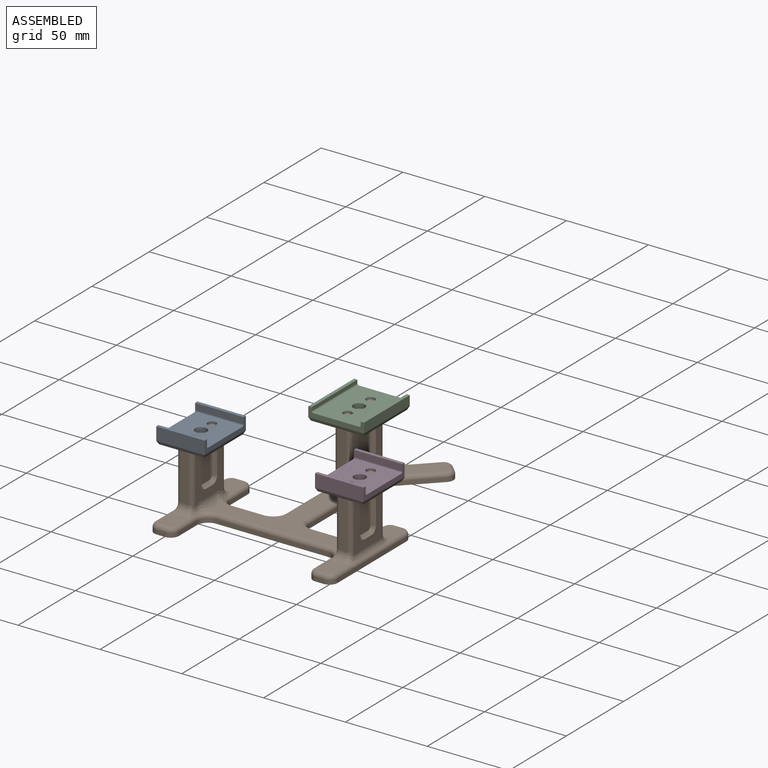
[diagram: assembled view]
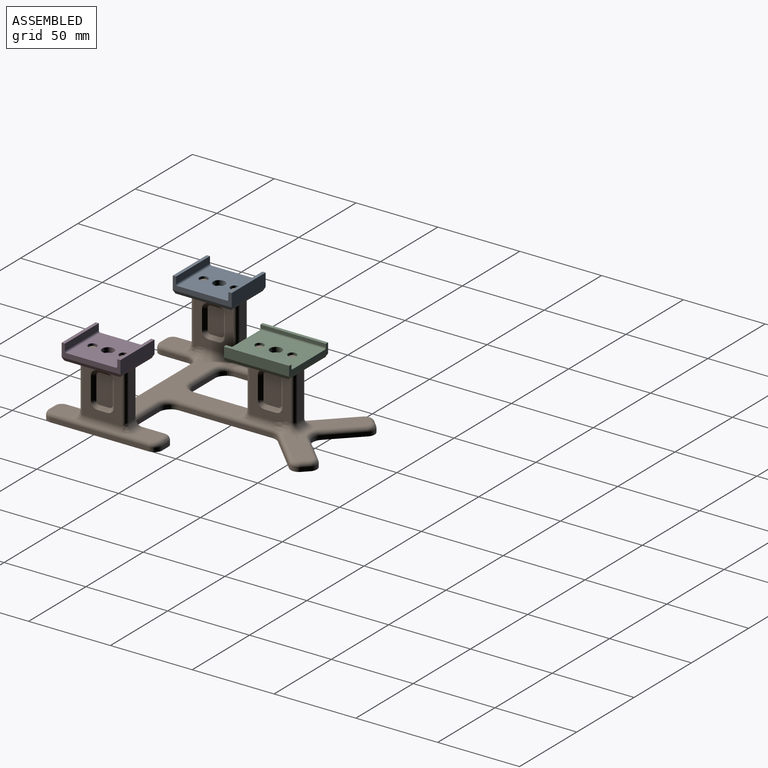
[diagram: assembled view, second angle]
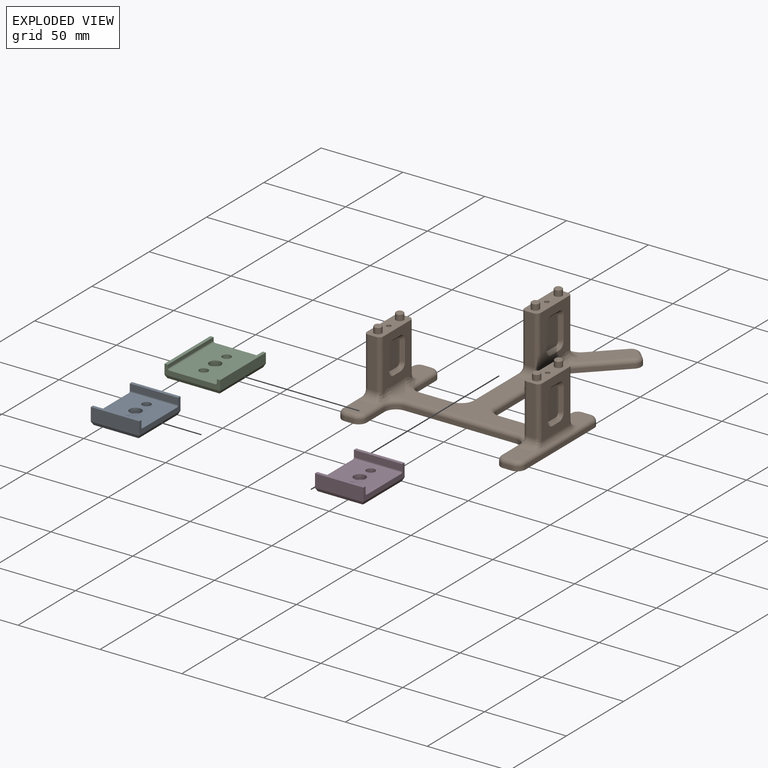
[diagram: exploded view]
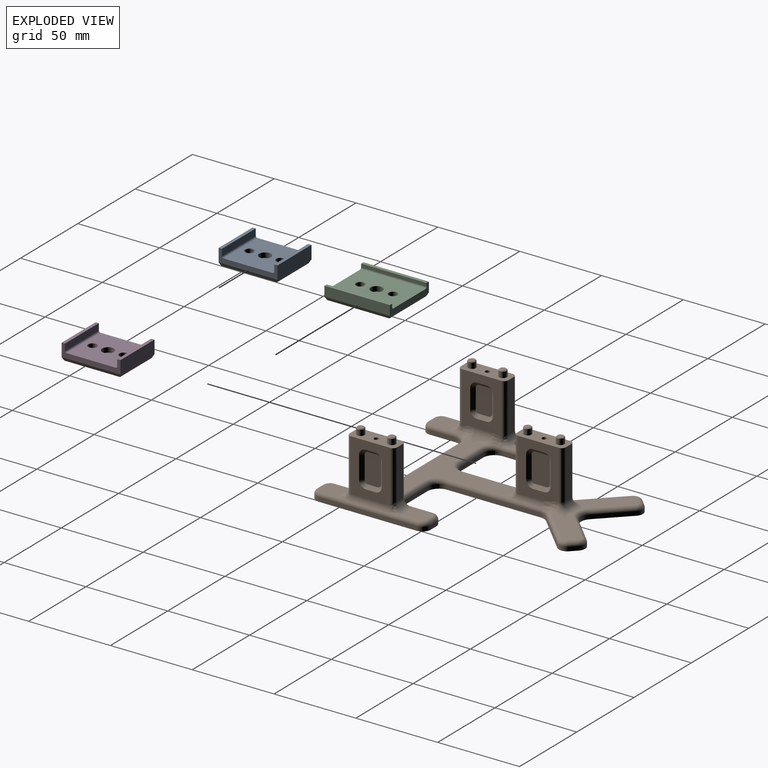
[diagram: exploded view, second angle]
ASSEMBLY  parts=4 mates=3
PART A: 23 faces, bbox 29.6x36x10 mm
  f0: plane 30x29.6mm, normal (0,0,1), area 803.2mm2, adj f3,f5,f6,f7,f9,f15,f16
  f1: cylinder r=1.75mm len=3.5mm, axis (0,0,-1), area 22mm2, adj f8,f10
  f2: plane 29.6x8mm, normal (0,1,0), area 236.8mm2, adj f3,f7,f12,f20
  f3: plane 36x8mm, normal (-1,0,0), area 128.4mm2, adj f0,f2,f4,f11,f12,f13,f14,f15
  f4: plane 29.6x8mm, normal (0,-1,0), area 236.8mm2, adj f3,f7,f14,f21
  f5: cylinder r=2.65mm len=5.3mm, axis (0,0,-1), area 66.6mm2, adj f0,f17
  f6: cylinder r=2.65mm len=5.3mm, axis (0,0,-1), area 66.6mm2, adj f0,f18
  f7: plane 36x8mm, normal (1,0,0), area 128.4mm2, adj f0,f2,f4,f11,f12,f13,f14,f15
  f8: plane 34x27.6mm, normal (0,0,-1), area 845.1mm2, adj f1,f17,f18,f19,f20,f21,f22
  f9: cylinder r=3.6mm len=7.2mm, axis (0,0,1), area 67.9mm2, adj f0,f10
  f10: plane 7.2x7.2mm, normal (0,0,1), area 31.1mm2, adj f1,f9
  f11: plane 29.6x4mm, normal (0,-1,0), area 118.4mm2, adj f3,f7,f12,f16
  f12: plane 29.6x2mm, normal (0,0,1), area 59.2mm2, adj f2,f3,f7,f11
  f13: plane 29.6x4mm, normal (0,1,0), area 118.4mm2, adj f3,f7,f14,f15
  f14: plane 29.6x2mm, normal (0,0,1), area 59.2mm2, adj f3,f4,f7,f13
  f15: cylinder r=1mm len=29.6mm, axis (-1,0,0), area 46.5mm2, adj f0,f3,f7,f13
  f16: cylinder r=1mm len=29.6mm, axis (1,0,0), area 46.5mm2, adj f0,f3,f7,f11
  f17: cone r=3.65mm half-angle=45deg, axis (0,0,-1), area 28mm2, adj f5,f8
  f18: cone r=3.65mm half-angle=45deg, axis (0,0,-1), area 28mm2, adj f6,f8
  f19: plane 36x2mm, normal (0.89,0,-0.45), area 78.3mm2, adj f7,f8,f20,f21
  f20: plane 29.6x2mm, normal (0,0.89,-0.45), area 64mm2, adj f2,f8,f19,f22
  f21: plane 29.6x2mm, normal (0,-0.89,-0.45), area 64mm2, adj f4,f8,f19,f22
  f22: plane 36x2mm, normal (-0.89,0,-0.45), area 78.3mm2, adj f3,f8,f20,f21
PART B: 242 faces, bbox 112.8x147.1x44 mm
  f0: plane 31.91x25mm, normal (1,0,0), area 472mm2, adj f106,f116,f117,f123,f125,f127,f129,f215
  f1: plane 31.91x25mm, normal (-1,0,0), area 472mm2, adj f106,f115,f118,f122,f124,f126,f128,f207
  f2: plane 31.39x24mm, normal (-1,0,0), area 459.7mm2, adj f103,f109,f110,f154,f156,f158,f231,f232
  f3: plane 31.91x24mm, normal (1,0,0), area 472.8mm2, adj f103,f107,f108,f161,f223,f224,f225,f226
  f4: plane 31.39x24mm, normal (1,0,0), area 459.7mm2, adj f100,f113,f114,f139,f141,f143,f191,f192
  f5: plane 31.91x24mm, normal (-1,0,0), area 472.8mm2, adj f100,f111,f112,f144,f199,f200,f201,f202
  f6: plane 31.21x28.28mm, normal (0,0,1), area 294.4mm2, adj f80,f82,f84,f86,f88,f90,f119,f120
  f7: plane 13.43x10mm, normal (0,0,1), area 128mm2, adj f56,f57,f58,f59,f60,f148,f149,f150
  f8: plane 13.43x10mm, normal (0,0,1), area 128mm2, adj f67,f69,f71,f73,f75,f164,f165,f166
  f9: plane 77x55.18mm, normal (0,0,1), area 1252.2mm2, adj f61,f63,f65,f70,f72,f74,f76,f85
  f10: plane 13.43x10mm, normal (0,0,1), area 128mm2, adj f60,f62,f64,f66,f68,f136,f138,f140
  f11: plane 31.21x28.28mm, normal (0,0,1), area 294.4mm2, adj f90,f92,f94,f95,f96,f97,f119,f121
  f12: plane 13.43x10mm, normal (0,0,1), area 128mm2, adj f75,f77,f79,f81,f83,f153,f155,f157
  f13: plane 60x2.5mm, normal (1,0,0), area 150mm2, adj f34,f44,f55,f75
  f14: plane 5x2.5mm, normal (0,1,0), area 12.5mm2, adj f34,f44,f45,f79
  f15: plane 15.5x2.5mm, normal (-1,0,0), area 38.8mm2, adj f34,f35,f45,f83
  f16: plane 19.5x2.5mm, normal (0,1,0), area 48.8mm2, adj f34,f35,f36,f87
  f17: plane 57.1x2.5mm, normal (1,0,0), area 142.8mm2, adj f34,f36,f37,f91
  f18: plane 22.7x22.7mm, normal (0.71,-0.71,0), area 80.3mm2, adj f34,f37,f46,f95
  f19: plane 3.54x3.54mm, normal (0.71,0.71,0), area 12.5mm2, adj f34,f46,f47,f96
  f20: plane 16.69x16.69mm, normal (-0.71,0.71,0), area 59mm2, adj f34,f38,f47,f92
  f21: plane 16.69x16.69mm, normal (0.71,0.71,0), area 59mm2, adj f34,f38,f48,f88
  f22: plane 3.54x3.54mm, normal (-0.71,0.71,0), area 12.5mm2, adj f34,f48,f49,f84
  f23: plane 22.7x22.7mm, normal (-0.71,-0.71,0), area 80.3mm2, adj f34,f39,f49,f80
  f24: plane 57.1x2.5mm, normal (-1,0,0), area 142.8mm2, adj f34,f39,f40,f76
  f25: plane 19.5x2.5mm, normal (0,1,0), area 48.8mm2, adj f34,f40,f41,f72
  f26: plane 15.5x2.5mm, normal (1,0,0), area 38.8mm2, adj f34,f41,f50,f68
  f27: plane 5x2.5mm, normal (0,1,0), area 12.5mm2, adj f34,f50,f51,f64
  f28: plane 60x2.5mm, normal (-1,0,0), area 150mm2, adj f34,f51,f52,f60
  f29: plane 5x2.5mm, normal (0,-1,0), area 12.5mm2, adj f34,f52,f53,f56
  f30: plane 15.5x2.5mm, normal (1,0,0), area 38.8mm2, adj f34,f42,f53,f59
  f31: plane 68x2.5mm, normal (0,-1,0), area 170mm2, adj f34,f42,f43,f63
  f32: plane 15.5x2.5mm, normal (-1,0,0), area 38.8mm2, adj f34,f43,f54,f67
  f33: plane 5x2.5mm, normal (0,-1,0), area 12.5mm2, adj f34,f54,f55,f71
  f34: plane 146.32x112mm, normal (0,0,-1), area 5564.8mm2, adj f13,f14,f15,f16,f17,f18,f19,f20
  f35: cylinder r=7mm len=7mm, axis (0,0,1), area 27.5mm2, adj f15,f16,f34,f85
  f36: cylinder r=7mm len=7mm, axis (0,0,1), area 27.5mm2, adj f16,f17,f34,f89
  f37: cylinder r=7mm len=4.95mm, axis (0,0,1), area 13.7mm2, adj f17,f18,f34,f93
  f38: cylinder r=7mm len=9.9mm, axis (0,0,-1), area 27.5mm2, adj f20,f21,f34,f90
  f39: cylinder r=7mm len=4.95mm, axis (0,0,1), area 13.7mm2, adj f23,f24,f34,f78
  f40: cylinder r=7mm len=7mm, axis (0,0,1), area 27.5mm2, adj f24,f25,f34,f74
  f41: cylinder r=7mm len=7mm, axis (0,0,1), area 27.5mm2, adj f25,f26,f34,f70
  f42: cylinder r=7mm len=7mm, axis (0,0,1), area 27.5mm2, adj f30,f31,f34,f61
  f43: cylinder r=7mm len=7mm, axis (0,0,-1), area 27.5mm2, adj f31,f32,f34,f65
  f44: cylinder r=5mm len=5mm, axis (0,0,1), area 19.6mm2, adj f13,f14,f34,f77
  f45: cylinder r=5mm len=5mm, axis (0,0,-1), area 19.6mm2, adj f14,f15,f34,f81
  f46: cylinder r=5mm len=7.07mm, axis (0,0,-1), area 19.6mm2, adj f18,f19,f34,f97
  f47: cylinder r=5mm len=7.07mm, axis (0,0,-1), area 19.6mm2, adj f19,f20,f34,f94
  f48: cylinder r=5mm len=7.07mm, axis (0,0,-1), area 19.6mm2, adj f21,f22,f34,f86
  f49: cylinder r=5mm len=7.07mm, axis (0,0,-1), area 19.6mm2, adj f22,f23,f34,f82
  f50: cylinder r=5mm len=5mm, axis (0,0,-1), area 19.6mm2, adj f26,f27,f34,f66
  f51: cylinder r=5mm len=5mm, axis (0,0,1), area 19.6mm2, adj f27,f28,f34,f62
  f52: cylinder r=5mm len=5mm, axis (0,0,-1), area 19.6mm2, adj f28,f29,f34,f58
  f53: cylinder r=5mm len=5mm, axis (0,0,-1), area 19.6mm2, adj f29,f30,f34,f57
  f54: cylinder r=5mm len=5mm, axis (0,0,-1), area 19.6mm2, adj f32,f33,f34,f69
  f55: cylinder r=5mm len=5mm, axis (0,0,-1), area 19.6mm2, adj f13,f33,f34,f73
  f56: cylinder r=2.5mm len=5mm, axis (-1,0,0), area 19.6mm2, adj f7,f29,f57,f58
  f57: torus R=2.5mm, axis (0,0,1), area 25.2mm2, adj f7,f53,f56,f59
  f58: torus R=2.5mm, axis (0,0,1), area 25.2mm2, adj f7,f52,f56,f60
  f59: cylinder r=2.5mm len=15.5mm, axis (0,-1,0), area 57.1mm2, adj f7,f30,f57,f61,f147
  f60: cylinder r=2.5mm len=60mm, axis (0,1,0), area 173.5mm2, adj f7,f10,f28,f58,f62,f142,f144,f146
  f61: torus R=9.5mm, axis (0,0,1), area 36.5mm2, adj f9,f42,f59,f63,f143,f145
  f62: torus R=2.5mm, axis (0,0,1), area 25.2mm2, adj f10,f51,f60,f64
  f63: cylinder r=2.5mm len=68mm, axis (-1,0,0), area 267mm2, adj f9,f31,f61,f65
  f64: cylinder r=2.5mm len=5mm, axis (1,0,0), area 19.6mm2, adj f10,f27,f62,f66
  f65: torus R=9.5mm, axis (0,0,1), area 36.5mm2, adj f9,f43,f63,f67,f158,f160
  f66: torus R=2.5mm, axis (0,0,1), area 25.2mm2, adj f10,f50,f64,f68
  f67: cylinder r=2.5mm len=15.5mm, axis (0,1,0), area 57.1mm2, adj f8,f32,f65,f69,f162
  f68: cylinder r=2.5mm len=15.5mm, axis (0,-1,0), area 57.1mm2, adj f10,f26,f66,f70,f135
  f69: torus R=2.5mm, axis (0,0,1), area 25.2mm2, adj f8,f54,f67,f71
  f70: torus R=9.5mm, axis (0,0,1), area 36.5mm2, adj f9,f41,f68,f72,f137,f139
  f71: cylinder r=2.5mm len=5mm, axis (-1,0,0), area 19.6mm2, adj f8,f33,f69,f73
  f72: cylinder r=2.5mm len=19.5mm, axis (1,0,0), area 76.6mm2, adj f9,f25,f70,f74
  f73: torus R=2.5mm, axis (0,0,1), area 25.2mm2, adj f8,f55,f71,f75
  f74: torus R=9.5mm, axis (0,0,1), area 48.8mm2, adj f9,f40,f72,f76
  f75: cylinder r=2.5mm len=60mm, axis (0,-1,0), area 173.5mm2, adj f8,f12,f13,f73,f77,f159,f161,f163
  f76: cylinder r=2.5mm len=57.1mm, axis (0,1,0), area 186.8mm2, adj f9,f24,f74,f78,f128,f130
  f77: torus R=2.5mm, axis (0,0,1), area 25.2mm2, adj f12,f44,f75,f79
  f78: torus R=9.5mm, axis (0,0,1), area 13.5mm2, adj f39,f76,f80,f126
  f79: cylinder r=2.5mm len=5mm, axis (1,0,0), area 19.6mm2, adj f12,f14,f77,f81
  f80: cylinder r=2.5mm len=24.47mm, axis (-0.71,0.71,0), area 124.4mm2, adj f6,f23,f78,f82,f124
  f81: torus R=2.5mm, axis (0,0,1), area 25.2mm2, adj f12,f45,f79,f83
  f82: torus R=2.5mm, axis (0,0,1), area 25.2mm2, adj f6,f49,f80,f84
  f83: cylinder r=2.5mm len=15.5mm, axis (0,1,0), area 57.1mm2, adj f12,f15,f81,f85,f151
  f84: cylinder r=2.5mm len=5.3mm, axis (0.71,0.71,0), area 19.6mm2, adj f6,f22,f82,f86
  f85: torus R=9.5mm, axis (0,0,1), area 36.5mm2, adj f9,f35,f83,f87,f152,f154
  f86: torus R=2.5mm, axis (0,0,1), area 25.2mm2, adj f6,f48,f84,f88
  f87: cylinder r=2.5mm len=19.5mm, axis (1,0,0), area 76.6mm2, adj f9,f16,f85,f89
  f88: cylinder r=2.5mm len=18.46mm, axis (0.71,-0.71,0), area 92.7mm2, adj f6,f21,f86,f90
  f89: torus R=9.5mm, axis (0,0,1), area 48.8mm2, adj f9,f36,f87,f91
  f90: torus R=9.5mm, axis (0,0,1), area 48.8mm2, adj f6,f11,f38,f88,f92
  f91: cylinder r=2.5mm len=57.1mm, axis (0,-1,0), area 186.8mm2, adj f9,f17,f89,f93,f129,f131
  f92: cylinder r=2.5mm len=18.46mm, axis (0.71,0.71,0), area 92.7mm2, adj f11,f20,f90,f94
  f93: torus R=9.5mm, axis (0,0,1), area 13.5mm2, adj f37,f91,f95,f127
  f94: torus R=2.5mm, axis (0,0,1), area 25.2mm2, adj f11,f47,f92,f96
  f95: cylinder r=2.5mm len=24.47mm, axis (-0.71,-0.71,0), area 124.4mm2, adj f11,f18,f93,f97,f125
  f96: cylinder r=2.5mm len=5.3mm, axis (0.71,-0.71,0), area 19.6mm2, adj f11,f19,f94,f97
  f97: torus R=2.5mm, axis (0,0,1), area 25.2mm2, adj f11,f46,f95,f96
  f98: plane 30x5mm, normal (0,1,0), area 150mm2, adj f100,f111,f114,f138
  f99: plane 30x5mm, normal (0,-1,0), area 150mm2, adj f100,f112,f113,f150
  f100: plane 29x10mm, normal (0,0,1), area 243.8mm2, adj f4,f5,f98,f99,f111,f112,f113,f114
  f101: plane 30x5mm, normal (0,1,0), area 150mm2, adj f103,f107,f110,f155
  f102: plane 30x5mm, normal (0,-1,0), area 150mm2, adj f103,f108,f109,f166
  f103: plane 29x10mm, normal (0,0,1), area 243.8mm2, adj f2,f3,f101,f102,f107,f108,f109,f110
  f104: plane 30x5mm, normal (0,-1,0), area 150mm2, adj f106,f117,f118,f134
  f105: plane 30x5mm, normal (0,1,0), area 150mm2, adj f106,f115,f116,f119
  f106: plane 30x10mm, normal (0,0,1), area 253.8mm2, adj f0,f1,f104,f105,f115,f116,f117,f118
  f107: cylinder r=2.5mm len=31.91mm, axis (0,0,1), area 120.7mm2, adj f3,f101,f103,f157,f159
  f108: cylinder r=2.5mm len=31.91mm, axis (0,0,-1), area 120.7mm2, adj f3,f102,f103,f163,f165
  f109: cylinder r=2.5mm len=31.55mm, axis (0,0,-1), area 120.8mm2, adj f2,f102,f103,f160,f162,f164
  f110: cylinder r=2.5mm len=31.55mm, axis (0,0,1), area 120.8mm2, adj f2,f101,f103,f151,f152,f153
  f111: cylinder r=2.5mm len=31.91mm, axis (0,0,1), area 120.7mm2, adj f5,f98,f100,f140,f142
  f112: cylinder r=2.5mm len=31.91mm, axis (0,0,-1), area 120.7mm2, adj f5,f99,f100,f146,f148
  f113: cylinder r=2.5mm len=31.55mm, axis (0,0,1), area 120.8mm2, adj f4,f99,f100,f145,f147,f149
  f114: cylinder r=2.5mm len=31.55mm, axis (0,0,-1), area 120.8mm2, adj f4,f98,f100,f135,f136,f137
  f115: cylinder r=2.5mm len=30mm, axis (0,0,1), area 117.8mm2, adj f1,f105,f106,f120
  f116: cylinder r=2.5mm len=30mm, axis (0,0,1), area 117.8mm2, adj f0,f105,f106,f121
  f117: cylinder r=2.5mm len=31.91mm, axis (0,0,-1), area 120.7mm2, adj f0,f104,f106,f131,f133
  f118: cylinder r=2.5mm len=31.91mm, axis (0,0,-1), area 120.7mm2, adj f1,f104,f106,f130,f132
  f119: cylinder r=5mm len=5mm, axis (-1,0,0), area 39.3mm2, adj f6,f11,f105,f120,f121
  f120: torus R=7.5mm, axis (0,0,1), area 53.3mm2, adj f6,f115,f119,f122
  f121: torus R=7.5mm, axis (0,0,1), area 53.3mm2, adj f11,f116,f119,f123
  f122: cylinder r=5mm len=5mm, axis (0,-1,0), area 4.5mm2, adj f1,f6,f120,f124
  f123: cylinder r=5mm len=5mm, axis (0,1,0), area 4.5mm2, adj f0,f11,f121,f125
  f124: bspline ~5.23x5mm, area 25.3mm2, adj f1,f80,f122,f126
  f125: bspline ~7.55x5.69mm, area 25.3mm2, adj f0,f95,f123,f127
  f126: bspline ~8.12x5.04mm, area 26.8mm2, adj f1,f78,f124,f128
  f127: bspline ~9.19x5.35mm, area 26.8mm2, adj f0,f93,f125,f129
  f128: cylinder r=5mm len=15.49mm, axis (0,1,0), area 65.1mm2, adj f1,f76,f126,f130
  f129: cylinder r=5mm len=15.49mm, axis (0,-1,0), area 65.1mm2, adj f0,f91,f127,f131
  f130: bspline ~8.07x5.64mm, area 24.9mm2, adj f76,f118,f128,f132
  f131: bspline ~8.07x5.64mm, area 24.9mm2, adj f91,f117,f129,f133
  f132: torus R=7.5mm, axis (0,0,1), area 11.5mm2, adj f9,f118,f130,f134
  f133: torus R=7.5mm, axis (0,0,1), area 11.5mm2, adj f9,f117,f131,f134
  f134: cylinder r=5mm len=5mm, axis (1,0,0), area 39.3mm2, adj f9,f104,f132,f133
  f135: bspline ~6.75x5.56mm, area 17.8mm2, adj f68,f114,f136,f137
  f136: torus R=7.5mm, axis (0,0,1), area 11.5mm2, adj f10,f114,f135,f138
  f137: bspline ~5.88x4.5mm, area 11.2mm2, adj f70,f114,f135,f139
  f138: cylinder r=5mm len=5mm, axis (-1,0,0), area 39.3mm2, adj f10,f98,f136,f140
  f139: bspline ~7.63x5.59mm, area 33.3mm2, adj f4,f70,f137,f141
  f140: torus R=7.5mm, axis (0,0,1), area 11.5mm2, adj f10,f111,f138,f142
  f141: cylinder r=5mm len=12.27mm, axis (0,1,0), area 96.3mm2, adj f4,f9,f139,f143
  f142: bspline ~8.41x5.64mm, area 24.9mm2, adj f60,f111,f140,f144
  f143: bspline ~8.56x5.56mm, area 33.3mm2, adj f4,f61,f141,f145
  f144: cylinder r=5mm len=24mm, axis (0,1,0), area 100.9mm2, adj f5,f60,f142,f146
  f145: bspline ~5.19x4.38mm, area 11.2mm2, adj f61,f113,f143,f147
  f146: bspline ~8.07x5.64mm, area 24.9mm2, adj f60,f112,f144,f148
  f147: bspline ~6.75x5.56mm, area 17.8mm2, adj f59,f113,f145,f149
  f148: torus R=7.5mm, axis (0,0,1), area 11.5mm2, adj f7,f112,f146,f150
  f149: torus R=7.5mm, axis (0,0,1), area 11.5mm2, adj f7,f113,f147,f150
  f150: cylinder r=5mm len=5mm, axis (1,0,0), area 39.3mm2, adj f7,f99,f148,f149
  f151: bspline ~6.75x5.56mm, area 17.8mm2, adj f83,f110,f152,f153
  f152: bspline ~5.19x4.38mm, area 11.2mm2, adj f85,f110,f151,f154
  f153: torus R=7.5mm, axis (0,0,1), area 11.5mm2, adj f12,f110,f151,f155
  f154: bspline ~8.56x5.56mm, area 33.3mm2, adj f2,f85,f152,f156
  f155: cylinder r=5mm len=5mm, axis (-1,0,0), area 39.3mm2, adj f12,f101,f153,f157
  f156: cylinder r=5mm len=12.27mm, axis (0,-1,0), area 96.3mm2, adj f2,f9,f154,f158
  f157: torus R=7.5mm, axis (0,0,1), area 11.5mm2, adj f12,f107,f155,f159
  f158: bspline ~9.12x5.59mm, area 33.3mm2, adj f2,f65,f156,f160
  f159: bspline ~8.41x5.64mm, area 24.9mm2, adj f75,f107,f157,f161
  f160: bspline ~5.88x4.5mm, area 11.2mm2, adj f65,f109,f158,f162
  f161: cylinder r=5mm len=24mm, axis (0,-1,0), area 100.9mm2, adj f3,f75,f159,f163
  f162: bspline ~6.75x5.56mm, area 17.8mm2, adj f67,f109,f160,f164
  f163: bspline ~8.07x5.64mm, area 24.9mm2, adj f75,f108,f161,f165
  f164: torus R=7.5mm, axis (0,0,1), area 11.5mm2, adj f8,f109,f162,f166
  f165: torus R=7.5mm, axis (0,0,1), area 11.5mm2, adj f8,f108,f163,f166
  f166: cylinder r=5mm len=5mm, axis (1,0,0), area 39.3mm2, adj f8,f102,f164,f165
  f167: cylinder r=2.35mm len=4.7mm, axis (0,0,-1), area 51.7mm2, adj f106,f183
  f168: plane 3.7x3.7mm, normal (0,0,1), area 10.8mm2, adj f183
  f169: cylinder r=2.35mm len=4.7mm, axis (0,0,-1), area 51.7mm2, adj f106,f184
  f170: plane 3.7x3.7mm, normal (0,0,1), area 10.8mm2, adj f184
  f171: cylinder r=2.35mm len=4.7mm, axis (0,0,-1), area 51.7mm2, adj f100,f181
  f172: plane 3.7x3.7mm, normal (0,0,1), area 10.8mm2, adj f181
  f173: cylinder r=2.35mm len=4.7mm, axis (0,0,-1), area 51.7mm2, adj f100,f182
  f174: plane 3.7x3.7mm, normal (0,0,1), area 10.8mm2, adj f182
  f175: cylinder r=2.35mm len=4.7mm, axis (0,0,-1), area 51.7mm2, adj f103,f180
  f176: plane 3.7x3.7mm, normal (0,0,1), area 10.8mm2, adj f180
  f177: cylinder r=2.35mm len=4.7mm, axis (0,0,-1), area 51.7mm2, adj f103,f179
  f178: plane 3.7x3.7mm, normal (0,0,1), area 10.8mm2, adj f179
  f179: cone r=1.85mm half-angle=45deg, axis (0,0,-1), area 9.3mm2, adj f177,f178
  f180: cone r=1.85mm half-angle=45deg, axis (0,0,-1), area 9.3mm2, adj f175,f176
  f181: cone r=1.85mm half-angle=45deg, axis (0,0,-1), area 9.3mm2, adj f171,f172
  f182: cone r=1.85mm half-angle=45deg, axis (0,0,-1), area 9.3mm2, adj f173,f174
  f183: cone r=1.85mm half-angle=45deg, axis (0,0,-1), area 9.3mm2, adj f167,f168
  f184: cone r=1.85mm half-angle=45deg, axis (0,0,-1), area 9.3mm2, adj f169,f170
  f185: plane 17.91x10mm, normal (-1,0,0), area 175.7mm2, adj f199,f200,f201,f202,f203,f204,f205,f206
  f186: plane 16x10mm, normal (1,0,0), area 156.6mm2, adj f191,f192,f193,f194,f195,f196,f197,f198
  f187: plane 17.91x10mm, normal (1,0,0), area 175.7mm2, adj f223,f224,f225,f226,f227,f228,f229,f230
  f188: plane 16x10mm, normal (-1,0,0), area 156.6mm2, adj f231,f232,f233,f234,f235,f236,f237,f238
  f189: plane 17.91x11mm, normal (-1,0,0), area 193.6mm2, adj f207,f208,f209,f210,f211,f212,f213,f214
  f190: plane 17.91x11mm, normal (1,0,0), area 193.6mm2, adj f215,f216,f217,f218,f219,f220,f221,f222
  f191: plane 6x2mm, normal (0.71,0,0.71), area 17mm2, adj f4,f186,f192,f193
  f192: cone r=2mm half-angle=45deg, axis (1,0,0), area 13.3mm2, adj f4,f186,f191,f194
  f193: cone r=2mm half-angle=45deg, axis (1,0,0), area 13.3mm2, adj f4,f186,f191,f195
  f194: plane 12x2mm, normal (0.71,0.71,0), area 33.9mm2, adj f4,f186,f192,f196
  f195: plane 12x2mm, normal (0.71,-0.71,0), area 33.9mm2, adj f4,f186,f193,f197
  f196: cone r=2mm half-angle=45deg, axis (1,0,0), area 13.3mm2, adj f4,f186,f194,f198
  f197: cone r=2mm half-angle=45deg, axis (1,0,0), area 13.3mm2, adj f4,f186,f195,f198
  f198: plane 6x2mm, normal (0.71,0,-0.71), area 17mm2, adj f4,f186,f196,f197
  f199: plane 6x2mm, normal (-0.71,0,0.71), area 17mm2, adj f5,f185,f200,f201
  f200: cone r=2mm half-angle=45deg, axis (-1,0,0), area 13.3mm2, adj f5,f185,f199,f202
  f201: cone r=2mm half-angle=45deg, axis (-1,0,0), area 13.3mm2, adj f5,f185,f199,f203
  f202: plane 13.91x2mm, normal (-0.71,-0.71,0), area 39.3mm2, adj f5,f185,f200,f204
  f203: plane 13.91x2mm, normal (-0.71,0.71,0), area 39.3mm2, adj f5,f185,f201,f205
  f204: cone r=2mm half-angle=45deg, axis (-1,0,0), area 13.3mm2, adj f5,f185,f202,f206
  f205: cone r=2mm half-angle=45deg, axis (-1,0,0), area 13.3mm2, adj f5,f185,f203,f206
  f206: plane 6x2mm, normal (-0.71,0,-0.71), area 17mm2, adj f5,f185,f204,f205
  f207: plane 7x2mm, normal (-0.71,0,0.71), area 19.8mm2, adj f1,f189,f208,f209
  f208: cone r=2mm half-angle=45deg, axis (-1,0,0), area 13.3mm2, adj f1,f189,f207,f210
  f209: cone r=2mm half-angle=45deg, axis (-1,0,0), area 13.3mm2, adj f1,f189,f207,f211
  f210: plane 13.91x2mm, normal (-0.71,-0.71,0), area 39.3mm2, adj f1,f189,f208,f212
  f211: plane 13.91x2mm, normal (-0.71,0.71,0), area 39.3mm2, adj f1,f189,f209,f213
  f212: cone r=2mm half-angle=45deg, axis (-1,0,0), area 13.3mm2, adj f1,f189,f210,f214
  f213: cone r=2mm half-angle=45deg, axis (-1,0,0), area 13.3mm2, adj f1,f189,f211,f214
  f214: plane 7x2mm, normal (-0.71,0,-0.71), area 19.8mm2, adj f1,f189,f212,f213
  f215: plane 7x2mm, normal (0.71,0,0.71), area 19.8mm2, adj f0,f190,f216,f217
  f216: cone r=2mm half-angle=45deg, axis (1,0,0), area 13.3mm2, adj f0,f190,f215,f218
  f217: cone r=2mm half-angle=45deg, axis (1,0,0), area 13.3mm2, adj f0,f190,f215,f219
  f218: plane 13.91x2mm, normal (0.71,0.71,0), area 39.3mm2, adj f0,f190,f216,f220
  f219: plane 13.91x2mm, normal (0.71,-0.71,0), area 39.3mm2, adj f0,f190,f217,f221
  f220: cone r=2mm half-angle=45deg, axis (1,0,0), area 13.3mm2, adj f0,f190,f218,f222
  f221: cone r=2mm half-angle=45deg, axis (1,0,0), area 13.3mm2, adj f0,f190,f219,f222
  f222: plane 7x2mm, normal (0.71,0,-0.71), area 19.8mm2, adj f0,f190,f220,f221
  f223: plane 6x2mm, normal (0.71,0,0.71), area 17mm2, adj f3,f187,f224,f225
  f224: cone r=2mm half-angle=45deg, axis (1,0,0), area 13.3mm2, adj f3,f187,f223,f226
  f225: cone r=2mm half-angle=45deg, axis (1,0,0), area 13.3mm2, adj f3,f187,f223,f227
  f226: plane 13.91x2mm, normal (0.71,0.71,0), area 39.3mm2, adj f3,f187,f224,f228
  f227: plane 13.91x2mm, normal (0.71,-0.71,0), area 39.3mm2, adj f3,f187,f225,f229
  f228: cone r=2mm half-angle=45deg, axis (1,0,0), area 13.3mm2, adj f3,f187,f226,f230
  f229: cone r=2mm half-angle=45deg, axis (1,0,0), area 13.3mm2, adj f3,f187,f227,f230
  f230: plane 6x2mm, normal (0.71,0,-0.71), area 17mm2, adj f3,f187,f228,f229
  f231: plane 6x2mm, normal (-0.71,0,0.71), area 17mm2, adj f2,f188,f232,f233
  f232: cone r=2mm half-angle=45deg, axis (-1,0,0), area 13.3mm2, adj f2,f188,f231,f234
  f233: cone r=2mm half-angle=45deg, axis (-1,0,0), area 13.3mm2, adj f2,f188,f231,f235
  f234: plane 12x2mm, normal (-0.71,-0.71,0), area 33.9mm2, adj f2,f188,f232,f236
  f235: plane 12x2mm, normal (-0.71,0.71,0), area 33.9mm2, adj f2,f188,f233,f237
  f236: cone r=2mm half-angle=45deg, axis (-1,0,0), area 13.3mm2, adj f2,f188,f234,f238
  f237: cone r=2mm half-angle=45deg, axis (-1,0,0), area 13.3mm2, adj f2,f188,f235,f238
  f238: plane 6x2mm, normal (-0.71,0,-0.71), area 17mm2, adj f2,f188,f236,f237
  f239: cylinder r=1.4mm len=40mm, axis (0,0,1), area 351.9mm2, adj f34,f106
  f240: cylinder r=1.4mm len=40mm, axis (0,0,1), area 351.9mm2, adj f34,f103
  f241: cylinder r=1.4mm len=40mm, axis (0,0,1), area 351.9mm2, adj f34,f100
PART C: 23 faces, bbox 34x40x8 mm
  f0: plane 40x28mm, normal (0,0,1), area 1035.2mm2, adj f2,f4,f5,f6,f9,f15,f16
  f1: cylinder r=1.75mm len=3.5mm, axis (0,0,-1), area 22mm2, adj f8,f10
  f2: plane 34x6mm, normal (0,1,0), area 114.4mm2, adj f0,f3,f7,f11,f12,f13,f14,f15
  f3: plane 40x6mm, normal (-1,0,0), area 240mm2, adj f2,f4,f12,f19
  f4: plane 34x6mm, normal (0,-1,0), area 114.4mm2, adj f0,f3,f7,f11,f12,f13,f14,f15
  f5: cylinder r=2.65mm len=5.3mm, axis (0,0,-1), area 66.6mm2, adj f0,f18
  f6: cylinder r=2.65mm len=5.3mm, axis (0,0,-1), area 66.6mm2, adj f0,f17
  f7: plane 40x6mm, normal (1,0,0), area 240mm2, adj f2,f4,f14,f22
  f8: plane 38x32mm, normal (0,0,-1), area 1122.7mm2, adj f1,f17,f18,f19,f20,f21,f22
  f9: cylinder r=3.6mm len=7.2mm, axis (0,0,1), area 67.9mm2, adj f0,f10
  f10: plane 7.2x7.2mm, normal (0,0,1), area 31.1mm2, adj f1,f9
  f11: plane 40x2mm, normal (1,0,0), area 80mm2, adj f2,f4,f12,f16
  f12: plane 40x2mm, normal (0,0,1), area 80mm2, adj f2,f3,f4,f11
  f13: plane 40x2mm, normal (-1,0,0), area 80mm2, adj f2,f4,f14,f15
  f14: plane 40x2mm, normal (0,0,1), area 80mm2, adj f2,f4,f7,f13
  f15: cylinder r=1mm len=40mm, axis (0,-1,0), area 62.8mm2, adj f0,f2,f4,f13
  f16: cylinder r=1mm len=40mm, axis (0,1,0), area 62.8mm2, adj f0,f2,f4,f11
  f17: cone r=3.65mm half-angle=45deg, axis (0,0,-1), area 28mm2, adj f6,f8
  f18: cone r=3.65mm half-angle=45deg, axis (0,0,-1), area 28mm2, adj f5,f8
  f19: plane 40x2mm, normal (-0.89,0,-0.45), area 87.2mm2, adj f3,f8,f20,f21
  f20: plane 34x2mm, normal (0,0.89,-0.45), area 73.8mm2, adj f2,f8,f19,f22
  f21: plane 34x2mm, normal (0,-0.89,-0.45), area 73.8mm2, adj f4,f8,f19,f22
  f22: plane 40x2mm, normal (0.89,0,-0.45), area 87.2mm2, adj f7,f8,f20,f21
PART D: same geometry as A
PLACE A t=(-48.5,7.5,40)mm
PLACE B t=(0,25,0)mm
PLACE C t=(0,76.11,40)mm
PLACE D t=(48.5,7.5,40)mm
MATE fastened D.f6 <-> B.f177  axis (0,0,-1) through (48.5,-2,40)mm
MATE fastened C.f5 <-> B.f167  axis (0,0,-1) through (0,86.11,40)mm
MATE fastened A.f5 <-> B.f171  axis (0,0,-1) through (-48.5,17,40)mm
